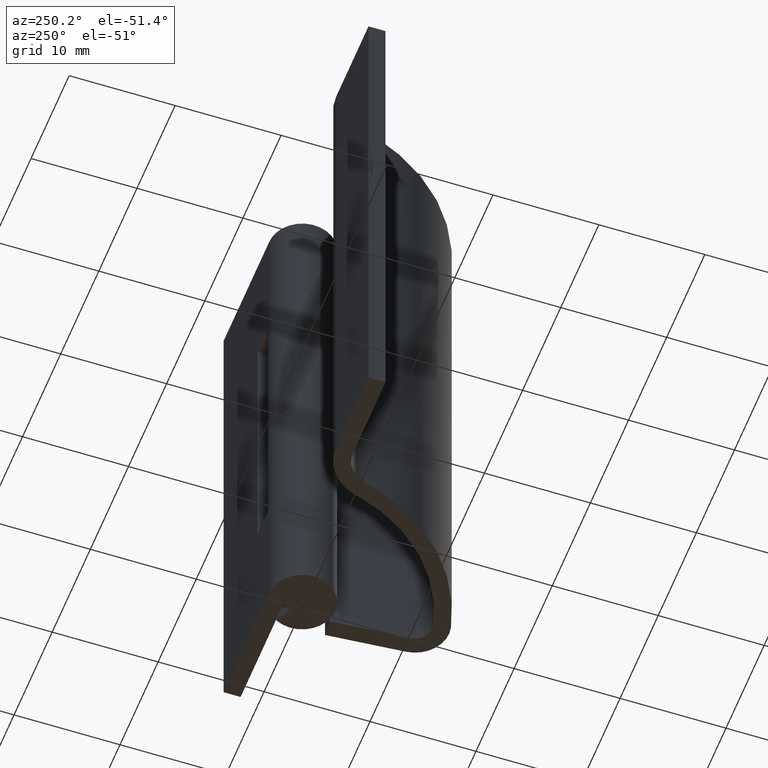
[diagram: clean part render]
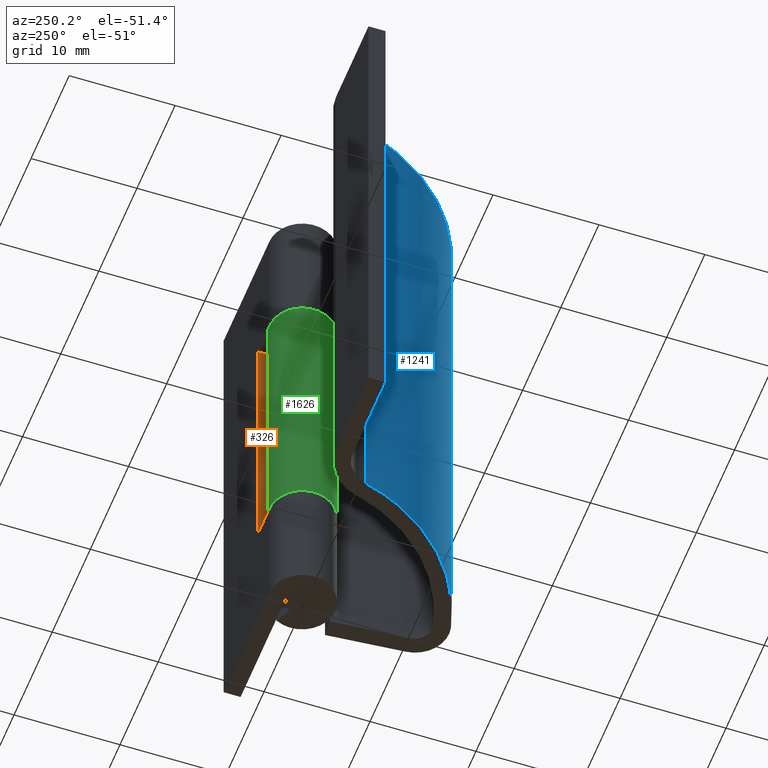
[diagram: same view with three faces highlighted in distinct colors, each labeled with its STEP entity id]
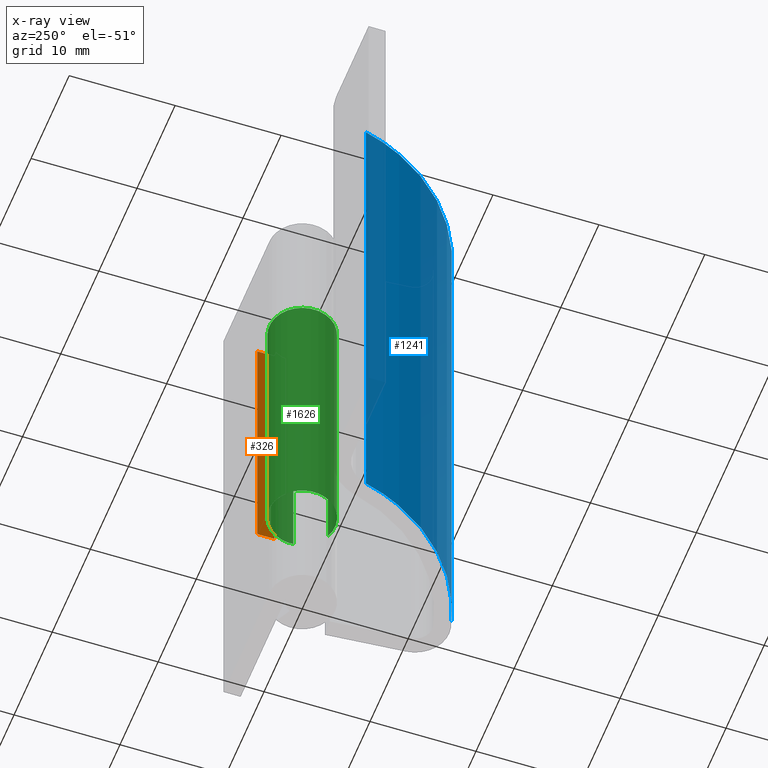
[diagram: x-ray of the same camera — body ghosted, the three highlighted faces saturated]
A machine part, auxiliary view with three faces highlighted in distinct colors.
The next image is the same camera in x-ray (body ghosted, the three faces saturated) — at least one of them is partly hidden behind the body in this view.
Their STEP definitions:

[orange] entity #326 — the highlighted face is a freeform B-spline surface patch.
#291=CARTESIAN_POINT('',(3.099998000000000,1.420080103001106,10.701299700743061));
#292=CARTESIAN_POINT('',(3.099998000000000,1.420080103001106,39.298707996631428));
#293=CARTESIAN_POINT('',(3.099998000000000,3.179917939914185,10.701299700743061));
#294=CARTESIAN_POINT('',(3.099998000000000,3.179917939914185,39.298707996631428));
#295=B_SPLINE_SURFACE_WITH_KNOTS('',1,1,((#291,#293),(#292,#294)),.UNSPECIFIED.,.F.,.F.,.U.,(2,2),(2,2),(0.0,28.597408295888371),(0.041708334948495,0.958291687403247),.UNSPECIFIED.);
#296=CARTESIAN_POINT('',(3.099998000000000,3.099998000000000,38.000006999999947));
#297=VERTEX_POINT('',#296);
#298=CARTESIAN_POINT('',(3.099998000000000,1.500000000000000,38.000006999999947));
#299=VERTEX_POINT('',#298);
#300=CARTESIAN_POINT('',(3.099998000000000,3.099998000000000,38.000006999999947));
#301=CARTESIAN_POINT('',(3.099998000000000,1.500000000000000,38.000006999999947));
#302=QUASI_UNIFORM_CURVE('',1,(#300,#301),.UNSPECIFIED.,.F.,.U.);
#303=EDGE_CURVE('',#297,#299,#302,.T.);
#304=ORIENTED_EDGE('',*,*,#303,.F.);
#305=CARTESIAN_POINT('',(3.099998000000000,3.099998000000000,12.0));
#306=VERTEX_POINT('',#305);
#307=CARTESIAN_POINT('',(3.099998000000000,3.099998000000000,12.0));
#308=CARTESIAN_POINT('',(3.099998000000000,3.099998000000000,38.000006999999947));
#309=QUASI_UNIFORM_CURVE('',1,(#307,#308),.UNSPECIFIED.,.F.,.U.);
#310=EDGE_CURVE('',#306,#297,#309,.T.);
#311=ORIENTED_EDGE('',*,*,#310,.F.);
#312=CARTESIAN_POINT('',(3.099998000000000,1.500000000000000,12.0));
#313=VERTEX_POINT('',#312);
#314=CARTESIAN_POINT('',(3.099998000000000,3.099998000000000,12.0));
#315=CARTESIAN_POINT('',(3.099998000000000,1.500000000000000,12.0));
#316=QUASI_UNIFORM_CURVE('',1,(#314,#315),.UNSPECIFIED.,.F.,.U.);
#317=EDGE_CURVE('',#306,#313,#316,.T.);
#318=ORIENTED_EDGE('',*,*,#317,.T.);
#319=CARTESIAN_POINT('',(3.099998000000000,1.500000000000000,12.0));
#320=CARTESIAN_POINT('',(3.099998000000000,1.500000000000000,38.000006999999947));
#321=QUASI_UNIFORM_CURVE('',1,(#319,#320),.UNSPECIFIED.,.F.,.U.);
#322=EDGE_CURVE('',#313,#299,#321,.T.);
#323=ORIENTED_EDGE('',*,*,#322,.T.);
#324=EDGE_LOOP('',(#304,#311,#318,#323));
#325=FACE_OUTER_BOUND('',#324,.T.);
#326=ADVANCED_FACE('',(#325),#295,.T.);

[blue] entity #1241 — the highlighted face is a freeform B-spline surface patch.
#1150=CARTESIAN_POINT('',(-14.596521837809760,-0.745138252427188,50.000006999999897));
#1151=VERTEX_POINT('',#1150);
#1166=CARTESIAN_POINT('',(-14.596521837809760,-0.745138252427188,0.0));
#1167=VERTEX_POINT('',#1166);
#1181=CARTESIAN_POINT('',(-14.596521837809760,-0.745138252427188,0.0));
#1182=CARTESIAN_POINT('',(-14.596521837809760,-0.745138252427188,50.000006999999897));
#1183=QUASI_UNIFORM_CURVE('',1,(#1181,#1182),.UNSPECIFIED.,.F.,.U.);
#1184=EDGE_CURVE('',#1167,#1151,#1183,.T.);
#1189=CARTESIAN_POINT('',(-1.316859313443499,-13.511584044435081,-1.250000174999999));
#1190=CARTESIAN_POINT('',(-1.316859313443499,-13.511584044435081,51.281257179374897));
#1191=CARTESIAN_POINT('',(-12.483402126288190,-11.073659679857137,-1.250000174999999));
#1192=CARTESIAN_POINT('',(-12.483402126288190,-11.073659679857137,51.281257179374897));
#1193=CARTESIAN_POINT('',(-14.798089535410440,0.119077956509899,-1.250000174999999));
#1194=CARTESIAN_POINT('',(-14.798089535410440,0.119077956509899,51.281257179374897));
#1202=(BOUNDED_SURFACE()B_SPLINE_SURFACE(1,2,((#1189,#1191,#1193),(#1190,#1192,#1194)),.UNSPECIFIED.,.F.,.F.,.U.)B_SPLINE_SURFACE_WITH_KNOTS((2,2),(3,3),(0.0,52.531257354374887),(0.0,20.853430045330452),.UNSPECIFIED.)GEOMETRIC_REPRESENTATION_ITEM()RATIONAL_B_SPLINE_SURFACE(((1.0,0.838670567945424,1.0),(1.0,0.838670567945424,1.0)))REPRESENTATION_ITEM('')SURFACE());
#1203=CARTESIAN_POINT('',(-1.765684675591115,-13.407421549093240,50.000006999999897));
#1204=VERTEX_POINT('',#1203);
#1205=CARTESIAN_POINT('',(-1.765684675591118,-13.407421549093240,50.000006999999897));
#1206=CARTESIAN_POINT('',(-11.956028212068336,-10.901454734328649,50.000006999999897));
#1207=CARTESIAN_POINT('',(-14.596521837809760,-0.745138252427186,50.000006999999897));
#1215=(BOUNDED_CURVE()B_SPLINE_CURVE(2,(#1205,#1206,#1207),.UNSPECIFIED.,.F.,.U.)CURVE()GEOMETRIC_REPRESENTATION_ITEM()QUASI_UNIFORM_CURVE()RATIONAL_B_SPLINE_CURVE((1.0,0.858911736249594,1.0))REPRESENTATION_ITEM(''));
#1216=EDGE_CURVE('',#1204,#1151,#1215,.T.);
#1217=ORIENTED_EDGE('',*,*,#1216,.T.);
#1218=ORIENTED_EDGE('',*,*,#1184,.F.);
#1219=CARTESIAN_POINT('',(-1.765684675591115,-13.407421549093240,0.0));
#1220=VERTEX_POINT('',#1219);
#1221=CARTESIAN_POINT('',(-1.765684675591118,-13.407421549093240,0.0));
#1222=CARTESIAN_POINT('',(-11.956028212068336,-10.901454734328649,0.0));
#1223=CARTESIAN_POINT('',(-14.596521837809760,-0.745138252427186,0.0));
#1231=(BOUNDED_CURVE()B_SPLINE_CURVE(2,(#1221,#1222,#1223),.UNSPECIFIED.,.F.,.U.)CURVE()GEOMETRIC_REPRESENTATION_ITEM()QUASI_UNIFORM_CURVE()RATIONAL_B_SPLINE_CURVE((1.0,0.858911736249594,1.0))REPRESENTATION_ITEM(''));
#1232=EDGE_CURVE('',#1220,#1167,#1231,.T.);
#1233=ORIENTED_EDGE('',*,*,#1232,.F.);
#1234=CARTESIAN_POINT('',(-1.765684675591115,-13.407421549093240,0.0));
#1235=CARTESIAN_POINT('',(-1.765684675591115,-13.407421549093240,50.000006999999897));
#1236=QUASI_UNIFORM_CURVE('',1,(#1234,#1235),.UNSPECIFIED.,.F.,.U.);
#1237=EDGE_CURVE('',#1220,#1204,#1236,.T.);
#1238=ORIENTED_EDGE('',*,*,#1237,.T.);
#1239=EDGE_LOOP('',(#1217,#1218,#1233,#1238));
#1240=FACE_OUTER_BOUND('',#1239,.T.);
#1241=ADVANCED_FACE('',(#1240),#1202,.T.);

[green] entity #1626 — the highlighted face is a freeform B-spline surface patch.
#958=CARTESIAN_POINT('',(3.088202999999895,-0.270184000000000,38.000006999999897));
#959=VERTEX_POINT('',#958);
#965=CARTESIAN_POINT('',(1.205675832574496,-2.855931684537605,38.000006999999897));
#966=VERTEX_POINT('',#965);
#967=CARTESIAN_POINT('',(1.205675832574495,-2.855931684537604,38.000006999999897));
#968=CARTESIAN_POINT('',(-0.964922135626075,-3.772283264886573,38.000006999999897));
#969=CARTESIAN_POINT('',(-2.428917306552652,-1.926229663858651,38.000006999999897));
#970=CARTESIAN_POINT('',(-3.892912477479228,-0.080176062830729,38.000006999999897));
#971=CARTESIAN_POINT('',(-2.506166905117873,1.824589664470316,38.000006999999897));
#972=CARTESIAN_POINT('',(-1.119421332756520,3.729355391771359,38.000006999999897));
#973=CARTESIAN_POINT('',(1.087065248593832,2.903151588412088,38.000006999999897));
#974=CARTESIAN_POINT('',(3.293551829944187,2.076947785052816,38.000006999999897));
#975=CARTESIAN_POINT('',(3.088202999999895,-0.270184000000000,38.000006999999897));
#983=(BOUNDED_CURVE()B_SPLINE_CURVE(2,(#967,#968,#969,#970,#971,#972,#973,#974,#975),.UNSPECIFIED.,.F.,.U.)B_SPLINE_CURVE_WITH_KNOTS((3,2,2,2,3),(0.0,0.250000000000000,0.500000000000000,0.750000000000000,1.0),.UNSPECIFIED.)CURVE()GEOMETRIC_REPRESENTATION_ITEM()RATIONAL_B_SPLINE_CURVE((1.0,0.796150122350891,1.0,0.796150122350891,1.0,0.796150122350891,1.0,0.796150122350891,1.0))REPRESENTATION_ITEM(''));
#984=EDGE_CURVE('',#966,#959,#983,.T.);
#1063=CARTESIAN_POINT('',(1.205675832574496,-2.855931684537605,12.0));
#1064=VERTEX_POINT('',#1063);
#1070=CARTESIAN_POINT('',(3.088202999999895,-0.270184000000000,12.0));
#1071=VERTEX_POINT('',#1070);
#1072=CARTESIAN_POINT('',(1.205675832574495,-2.855931684537604,12.0));
#1073=CARTESIAN_POINT('',(-0.964922135626075,-3.772283264886573,12.0));
#1074=CARTESIAN_POINT('',(-2.428917306552652,-1.926229663858651,12.0));
#1075=CARTESIAN_POINT('',(-3.892912477479228,-0.080176062830729,12.0));
#1076=CARTESIAN_POINT('',(-2.506166905117873,1.824589664470316,12.0));
#1077=CARTESIAN_POINT('',(-1.119421332756520,3.729355391771359,12.0));
#1078=CARTESIAN_POINT('',(1.087065248593832,2.903151588412088,12.0));
#1079=CARTESIAN_POINT('',(3.293551829944187,2.076947785052816,12.0));
#1080=CARTESIAN_POINT('',(3.088202999999895,-0.270184000000000,12.0));
#1088=(BOUNDED_CURVE()B_SPLINE_CURVE(2,(#1072,#1073,#1074,#1075,#1076,#1077,#1078,#1079,#1080),.UNSPECIFIED.,.F.,.U.)B_SPLINE_CURVE_WITH_KNOTS((3,2,2,2,3),(0.0,0.250000000000000,0.500000000000000,0.750000000000000,1.0),.UNSPECIFIED.)CURVE()GEOMETRIC_REPRESENTATION_ITEM()RATIONAL_B_SPLINE_CURVE((1.0,0.796150122350891,1.0,0.796150122350891,1.0,0.796150122350891,1.0,0.796150122350891,1.0))REPRESENTATION_ITEM(''));
#1089=EDGE_CURVE('',#1064,#1071,#1088,.T.);
#1585=CARTESIAN_POINT('',(3.088202999999895,-0.270184000000000,12.0));
#1586=CARTESIAN_POINT('',(3.088202999999895,-0.270184000000000,38.000006999999897));
#1587=QUASI_UNIFORM_CURVE('',1,(#1585,#1586),.UNSPECIFIED.,.F.,.U.);
#1588=EDGE_CURVE('',#1071,#959,#1587,.T.);
#1594=CARTESIAN_POINT('',(1.280022064720516,-2.823391697390370,11.349999824999999));
#1595=CARTESIAN_POINT('',(1.280022064720516,-2.823391697390370,38.666257179374902));
#1596=CARTESIAN_POINT('',(-2.124798193771048,-4.367012110138941,11.349999825000001));
#1597=CARTESIAN_POINT('',(-2.124798193771048,-4.367012110138941,38.666257179374909));
#1598=CARTESIAN_POINT('',(-3.011530900329963,-0.735308642287068,11.349999824999999));
#1599=CARTESIAN_POINT('',(-3.011530900329963,-0.735308642287068,38.666257179374902));
#1600=CARTESIAN_POINT('',(-3.898263606888878,2.896394825564806,11.349999825000001));
#1601=CARTESIAN_POINT('',(-3.898263606888878,2.896394825564806,38.666257179374909));
#1602=CARTESIAN_POINT('',(-0.165183904233807,3.095595490506847,11.349999824999999));
#1603=CARTESIAN_POINT('',(-0.165183904233807,3.095595490506847,38.666257179374902));
#1604=CARTESIAN_POINT('',(3.567895798421264,3.294796155448887,11.349999825000001));
#1605=CARTESIAN_POINT('',(3.567895798421264,3.294796155448887,38.666257179374909));
#1606=CARTESIAN_POINT('',(3.072680304414727,-0.410649375898792,11.349999824999999));
#1607=CARTESIAN_POINT('',(3.072680304414727,-0.410649375898792,38.666257179374902));
#1615=(BOUNDED_SURFACE()B_SPLINE_SURFACE(1,2,((#1594,#1596,#1598,#1600,#1602,#1604,#1606),(#1595,#1597,#1599,#1601,#1603,#1605,#1607)),.UNSPECIFIED.,.F.,.F.,.U.)B_SPLINE_SURFACE_WITH_KNOTS((2,2),(3,2,2,3),(0.0,27.316257354374908),(0.0,5.826187202601006,11.652374405202011,17.478561607803019),.UNSPECIFIED.)GEOMETRIC_REPRESENTATION_ITEM()RATIONAL_B_SPLINE_SURFACE(((1.0,0.638320090924328,1.0,0.638320090924328,1.0,0.638320090924328,1.0),(1.0,0.638320090924328,1.0,0.638320090924328,1.0,0.638320090924328,1.0)))REPRESENTATION_ITEM('')SURFACE());
#1616=ORIENTED_EDGE('',*,*,#984,.T.);
#1617=ORIENTED_EDGE('',*,*,#1588,.F.);
#1618=ORIENTED_EDGE('',*,*,#1089,.F.);
#1619=CARTESIAN_POINT('',(1.205675832574496,-2.855931684537605,12.0));
#1620=CARTESIAN_POINT('',(1.205675832574496,-2.855931684537605,38.000006999999897));
#1621=QUASI_UNIFORM_CURVE('',1,(#1619,#1620),.UNSPECIFIED.,.F.,.U.);
#1622=EDGE_CURVE('',#1064,#966,#1621,.T.);
#1623=ORIENTED_EDGE('',*,*,#1622,.T.);
#1624=EDGE_LOOP('',(#1616,#1617,#1618,#1623));
#1625=FACE_OUTER_BOUND('',#1624,.T.);
#1626=ADVANCED_FACE('',(#1625),#1615,.T.);